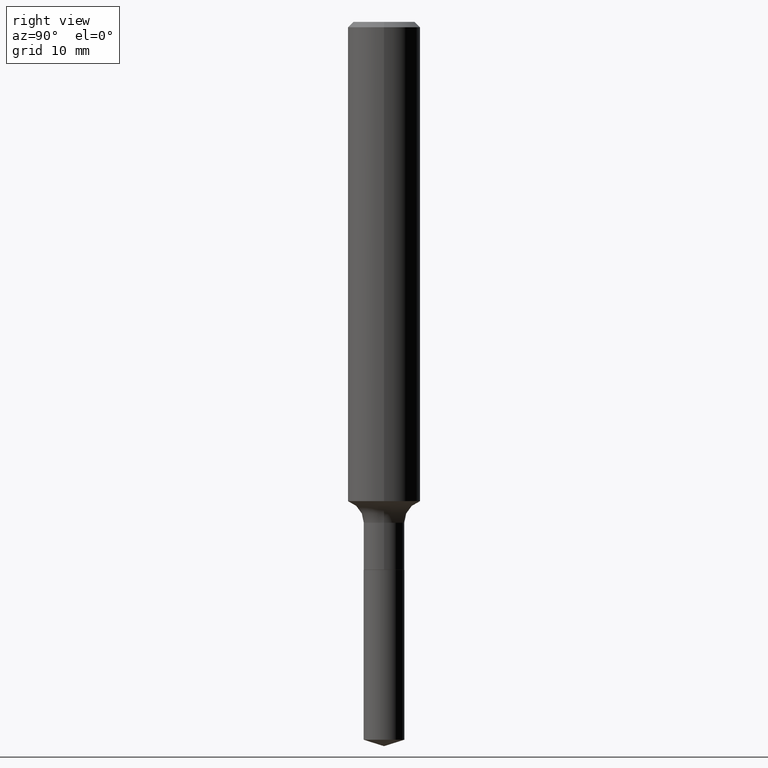
[diagram: clean part render]
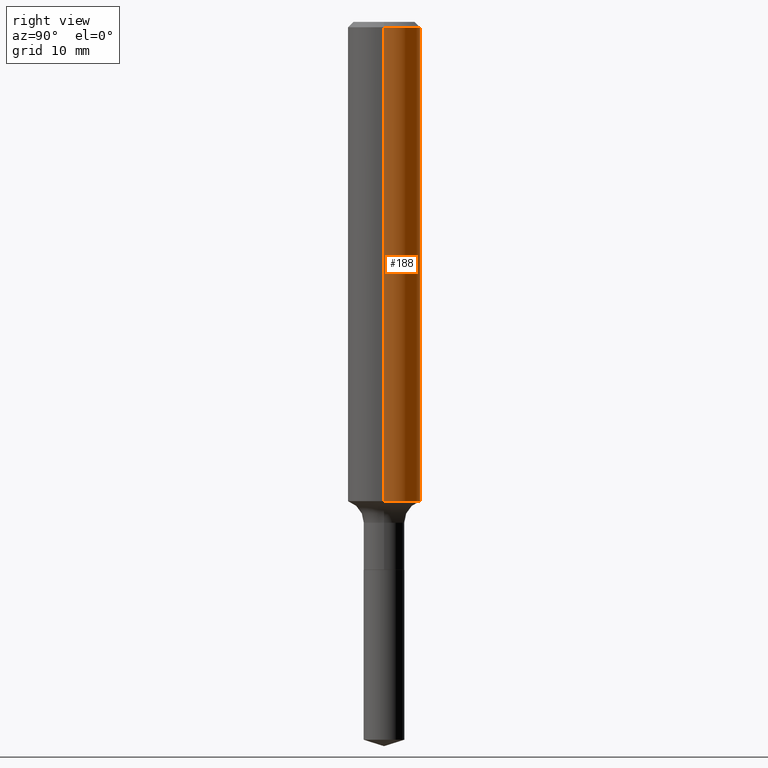
[diagram: same view with one face highlighted and labeled with its STEP entity id]
A machine part, right view. The second image highlights one B-rep face of the part: STEP entity #188.
In plain terms, the highlighted cylindrical surface (edge-blend (fillet) strip) has radius 3.175 mm, axis along (-0, 0, 1).
Its self-contained STEP definition (entity closure, byte-faithful):
#2 = DIRECTION ( 'NONE',  ( 1.000000000000000000, -6.982962677686266711E-15, 4.876176775795935232E-29 ) ) ;
#33 = DIRECTION ( 'NONE',  ( -2.445468806185136877E-29, 3.491481338843145188E-15, 1.000000000000000000 ) ) ;
#42 = DIRECTION ( 'NONE',  ( -2.445468806185136597E-29, 3.491481338843145583E-15, 1.000000000000000000 ) ) ;
#46 = CARTESIAN_POINT ( 'NONE',  ( 0.1250000000000001110, -8.728703347107841277E-16, 6.095220969744924646E-30 ) ) ;
#54 = VERTEX_POINT ( 'NONE', #366 ) ;
#57 = DIRECTION ( 'NONE',  ( 1.000000000000000000, -6.982962677686266711E-15, 0.000000000000000000 ) ) ;
#64 = DIRECTION ( 'NONE',  ( -2.445468806185136597E-29, 3.491481338843145583E-15, 1.000000000000000000 ) ) ;
#76 = CYLINDRICAL_SURFACE ( 'NONE', #457, 0.1250000000000001110 ) ;
#94 = CARTESIAN_POINT ( 'NONE',  ( 4.585254011597163874E-31, -6.546527510330944066E-17, -0.01875000000000013461 ) ) ;
#118 = EDGE_CURVE ( 'NONE', #171, #427, #191, .T. ) ;
#120 = VECTOR ( 'NONE', #158, 39.37007874015748143 ) ;
#149 = EDGE_CURVE ( 'NONE', #427, #54, #370, .T. ) ;
#155 = VECTOR ( 'NONE', #33, 39.37007874015748143 ) ;
#158 = DIRECTION ( 'NONE',  ( -2.445468806185136877E-29, 3.491481338843145188E-15, 1.000000000000000000 ) ) ;
#170 = VERTEX_POINT ( 'NONE', #266 ) ;
#171 = VERTEX_POINT ( 'NONE', #272 ) ;
#188 = ADVANCED_FACE ( 'NONE', ( #387 ), #76, .T. ) ;
#191 = CIRCLE ( 'NONE', #328, 0.1250000000000001943 ) ;
#202 = ORIENTED_EDGE ( 'NONE', *, *, #250, .F. ) ;
#223 = CARTESIAN_POINT ( 'NONE',  ( -0.1250000000000001110, 8.881784197001260212E-16, -6.148668862818637832E-30 ) ) ;
#224 = CARTESIAN_POINT ( 'NONE',  ( 4.045933665398783459E-29, -5.776520990661802291E-15, -1.654461367556892881 ) ) ;
#231 = CARTESIAN_POINT ( 'NONE',  ( 0.000000000000000000, 0.000000000000000000, 0.000000000000000000 ) ) ;
#250 = EDGE_CURVE ( 'NONE', #171, #170, #269, .T. ) ;
#260 = DIRECTION ( 'NONE',  ( 1.000000000000000000, -6.982962677686267499E-15, 0.000000000000000000 ) ) ;
#266 = CARTESIAN_POINT ( 'NONE',  ( 0.1250000000000000000, -9.383356098140928781E-16, -0.01875000000000013461 ) ) ;
#269 = LINE ( 'NONE', #46, #120 ) ;
#272 = CARTESIAN_POINT ( 'NONE',  ( 0.1250000000000003053, -6.649391325372587997E-15, -1.654461367556892881 ) ) ;
#282 = ORIENTED_EDGE ( 'NONE', *, *, #118, .T. ) ;
#328 = AXIS2_PLACEMENT_3D ( 'NONE', #224, #64, #260 ) ;
#350 = CIRCLE ( 'NONE', #444, 0.1250000000000000000 ) ;
#358 = ORIENTED_EDGE ( 'NONE', *, *, #149, .T. ) ;
#366 = CARTESIAN_POINT ( 'NONE',  ( -0.1250000000000000000, -2.032814713182428908E-15, -0.01875000000000013461 ) ) ;
#370 = LINE ( 'NONE', #223, #155 ) ;
#387 = FACE_OUTER_BOUND ( 'NONE', #393, .T. ) ;
#390 = CARTESIAN_POINT ( 'NONE',  ( -0.1250000000000003053, -4.888342570961675481E-15, -1.654461367556892881 ) ) ;
#393 = EDGE_LOOP ( 'NONE', ( #282, #358, #469, #202 ) ) ;
#399 = DIRECTION ( 'NONE',  ( -2.445468806185136597E-29, 3.491481338843145583E-15, 1.000000000000000000 ) ) ;
#427 = VERTEX_POINT ( 'NONE', #390 ) ;
#444 = AXIS2_PLACEMENT_3D ( 'NONE', #94, #399, #57 ) ;
#457 = AXIS2_PLACEMENT_3D ( 'NONE', #231, #42, #2 ) ;
#469 = ORIENTED_EDGE ( 'NONE', *, *, #481, .F. ) ;
#481 = EDGE_CURVE ( 'NONE', #170, #54, #350, .T. ) ;